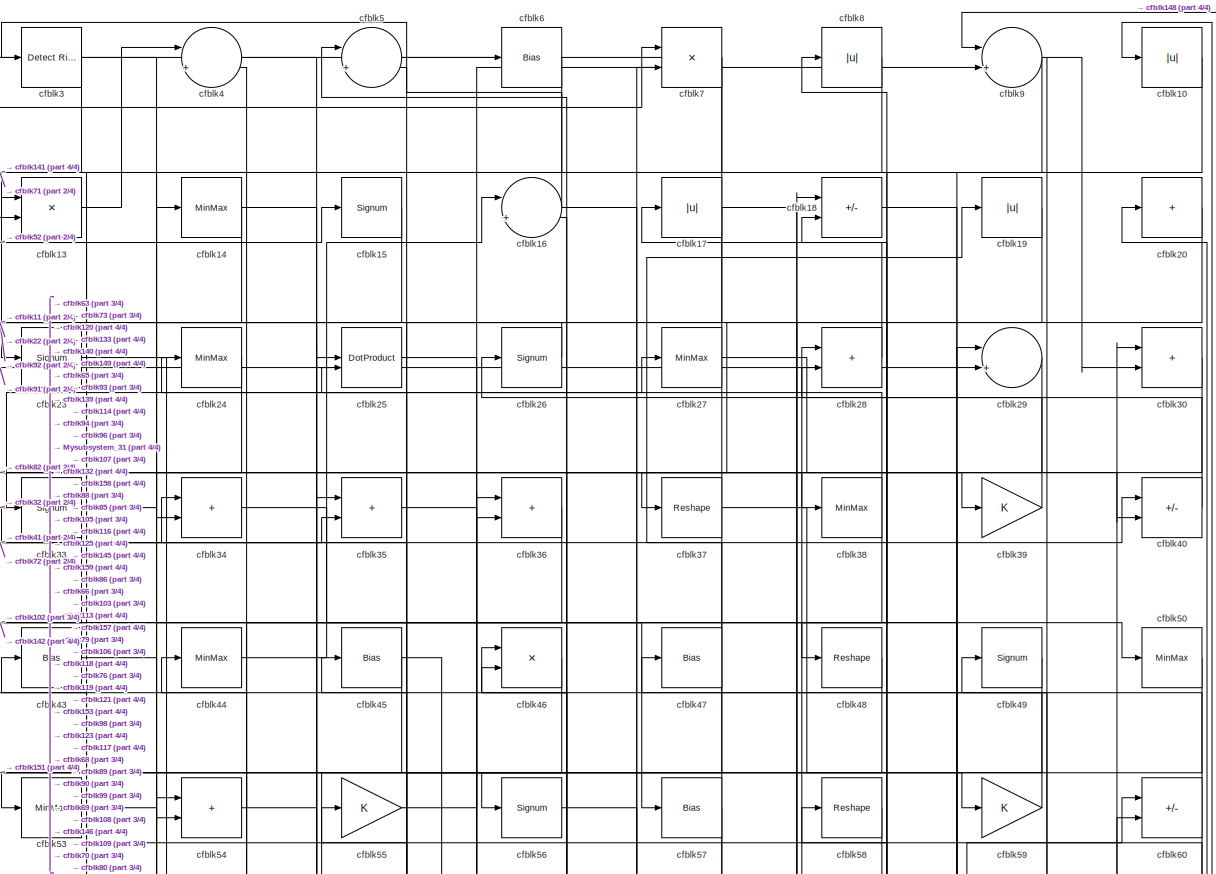
[diagram: root canvas - part 1/4, full width, top band]
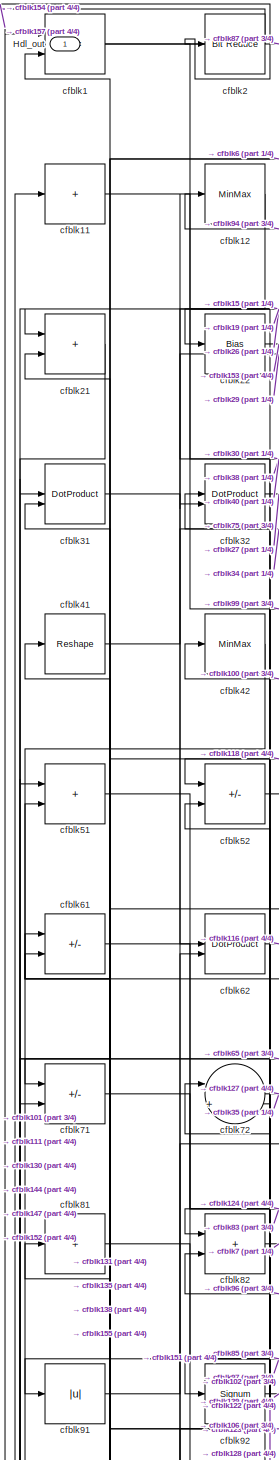
[diagram: root canvas - part 2/4, top left region]
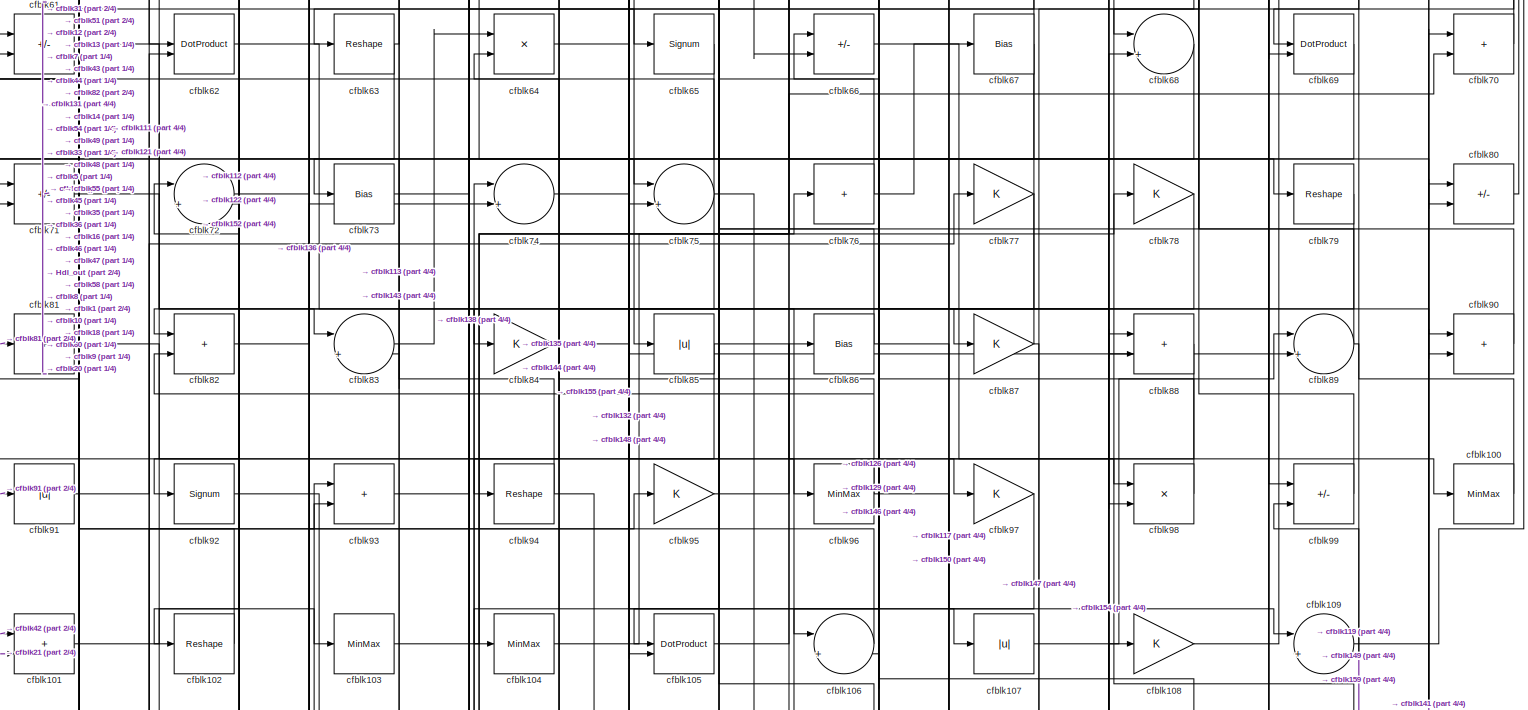
[diagram: root canvas - part 3/4, full width, middle band]
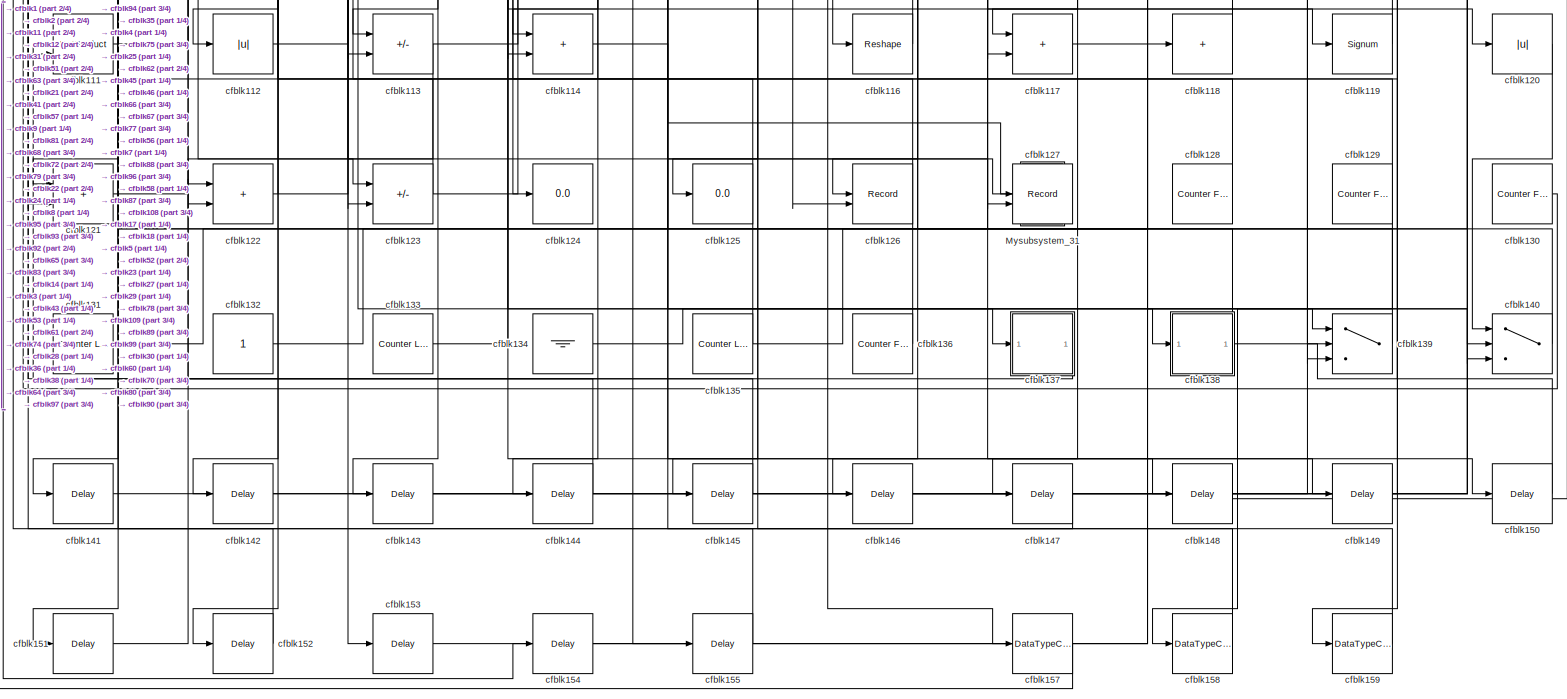
[diagram: root canvas - part 4/4, full width, bottom band]
MODEL slx_ad410b694e6f
KIND model
CONFIG AbsTol = auto
CONFIG EnableMultiTasking = off
CONFIG FixedStep = auto
CONFIG MaxStep = auto
CONFIG MinStep = auto
CONFIG RelTol = 1e-3
CONFIG SampleTimeConstraint = Unconstrained
CONFIG SolverName = VariableStepAuto
CONFIG StartTime = 0.0
CONFIG StopTime = 10.0
BLOCK [Outport] Hdl_out
  OutDataTypeStr = uint8
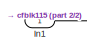
[diagram: Mysubsystem_31 - part 1/2, top left region]
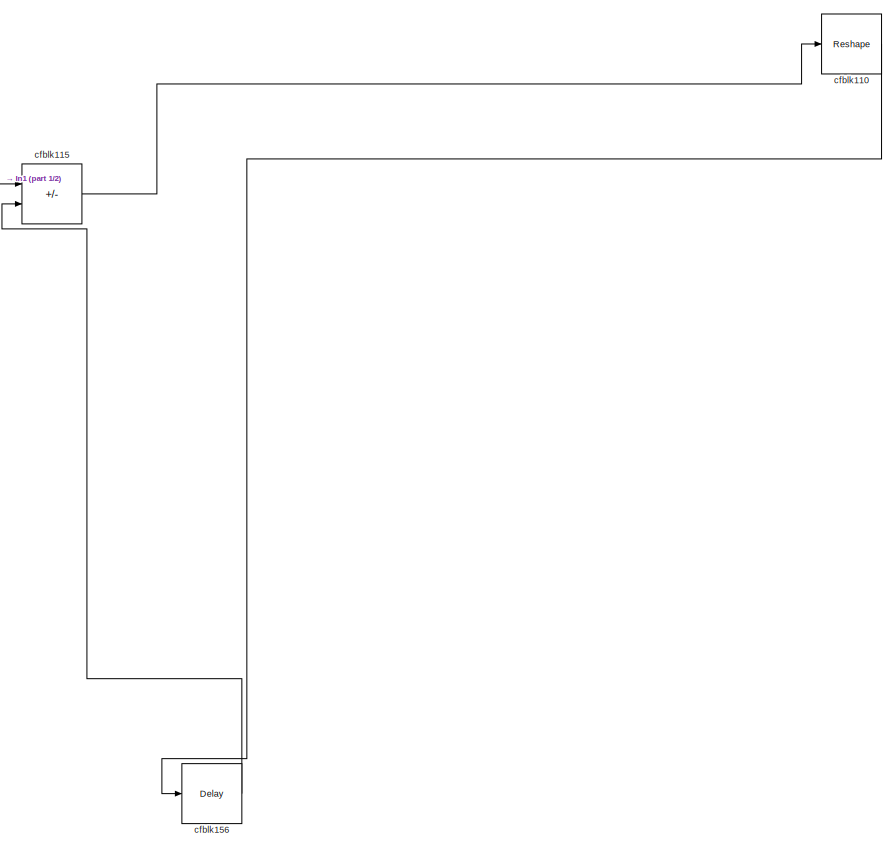
[diagram: Mysubsystem_31 - part 2/2, full width, bottom band]
BLOCK [SubSystem] Mysubsystem_31
  RTWFcnName = Mysubsystem_31
  RTWFcnNameOpts = User specified
  RTWFileNameOpts = Use function name
  RTWSystemCode = Reusable function
  TreatAsAtomicUnit = on
BLOCK [Inport] Mysubsystem_31/In1
BLOCK [Reshape] Mysubsystem_31/cfblk110
BLOCK [Sum] Mysubsystem_31/cfblk115
  IconShape = rectangular
  Inputs = +-
BLOCK [Delay] Mysubsystem_31/cfblk156
  InputPortMap = u0
  SampleTime = 1
BLOCK [RelationalOperator] cfblk1
  InputSameDT = off
  Operator = <=
  OutDataTypeStr = boolean
BLOCK [Abs] cfblk10
  OutDataTypeStr = uint8
  SaturateOnIntegerOverflow = off
BLOCK [MinMax] cfblk100
  OutDataTypeStr = uint8
BLOCK [Sum] cfblk101
  IconShape = rectangular
  OutDataTypeStr = uint8
BLOCK [Reshape] cfblk102
BLOCK [MinMax] cfblk103
  OutDataTypeStr = uint8
BLOCK [MinMax] cfblk104
  OutDataTypeStr = uint8
BLOCK [DotProduct] cfblk105
  OutDataTypeStr = uint8
BLOCK [Sum] cfblk106
  Inputs = |++
  OutDataTypeStr = uint8
BLOCK [Abs] cfblk107
  OutDataTypeStr = uint8
  SaturateOnIntegerOverflow = off
BLOCK [Gain] cfblk108
  OutDataTypeStr = uint8
BLOCK [Sum] cfblk109
  Inputs = |++
  OutDataTypeStr = uint8
BLOCK [Sum] cfblk11
  IconShape = rectangular
  Inputs = +
  OutDataTypeStr = uint8
BLOCK [DotProduct] cfblk111
  OutDataTypeStr = uint8
BLOCK [Abs] cfblk112
  OutDataTypeStr = uint8
  SaturateOnIntegerOverflow = off
BLOCK [Sum] cfblk113
  IconShape = rectangular
  Inputs = +-
  OutDataTypeStr = uint8
BLOCK [Sum] cfblk114
  IconShape = rectangular
  OutDataTypeStr = uint8
BLOCK [Reshape] cfblk116
BLOCK [Sum] cfblk117
  IconShape = rectangular
  OutDataTypeStr = uint8
BLOCK [Sum] cfblk118
  IconShape = rectangular
  Inputs = +
  OutDataTypeStr = uint8
BLOCK [Signum] cfblk119
BLOCK [MinMax] cfblk12
  OutDataTypeStr = uint8
BLOCK [Abs] cfblk120
  OutDataTypeStr = uint8
  SaturateOnIntegerOverflow = off
BLOCK [Sum] cfblk121
  IconShape = rectangular
  OutDataTypeStr = uint8
BLOCK [Sum] cfblk122
  IconShape = rectangular
  OutDataTypeStr = uint8
BLOCK [Sum] cfblk123
  IconShape = rectangular
  Inputs = +-
  OutDataTypeStr = uint8
BLOCK [Display] cfblk124
  Decimation = 1
BLOCK [Display] cfblk125
  Decimation = 1
BLOCK [Record] cfblk126
  CompatibilityTag = XY
  FileSettingsInternal = {"entries":[{"content":{"excelSettings":{"content":{},"type":"Streamout.ExcelSettings"}},"type":"Streamout.FileSettingStorage","uuid":""}],"packageUris":["http:\/\/schema.mathworks.com\/mf0\/streamout_blocks\/R2020a"],"version":"1.0"}
  Layout = [1 1]
  SignalsInternal = {"entries":[{"content":{"signals":[{"content":{"blockPath":[],"dimensions":[1],"domain":"","lineColor":"#a2142f","plots":[1],"port":1,"signalID":12275,"signalName":"cfblk67"},"type":"RecordBlkView.Signal","uuid":""},{"content":{"blockPath":[],"dimensions":[1],"domain":"","lineColor":"#139fff","plots":[1],"port":2,"signalID":12278,"signalName":"cfblk75"},"type":"RecordBlkView.Signal","uuid":""}]},"...<+142ch>
  VisualizationBindings = {"xyplotplugin":{"info":[{"series":[{"bindingParametersList":[{"parameter":"X-Axis","signalID":12275,"signalName":"cfblk67"},{"parameter":"Y-Axis","signalID":12278,"signalName":"cfblk75"}],"seriesID":9801}],"subplotID":1}]}}
  st = -1
BLOCK [Record] cfblk127
  CompatibilityTag = XY
  FileSettingsInternal = {"entries":[{"content":{"excelSettings":{"content":{},"type":"Streamout.ExcelSettings"}},"type":"Streamout.FileSettingStorage","uuid":""}],"packageUris":["http:\/\/schema.mathworks.com\/mf0\/streamout_blocks\/R2020a"],"version":"1.0"}
  Layout = [1 1]
  SignalsInternal = {"entries":[{"content":{"signals":[{"content":{"blockPath":[],"dimensions":[1],"domain":"","lineColor":"#a2142f","plots":[1],"port":1,"signalID":12267,"signalName":"cfblk114"},"type":"RecordBlkView.Signal","uuid":""},{"content":{"blockPath":[],"dimensions":[1],"domain":"","lineColor":"#139fff","plots":[1],"port":2,"signalID":12270,"signalName":"cfblk72"},"type":"RecordBlkView.Signal","uuid":""}]},...<+143ch>
  VisualizationBindings = {"xyplotplugin":{"info":[{"series":[{"bindingParametersList":[{"parameter":"X-Axis","signalID":12267,"signalName":"cfblk114"},{"parameter":"Y-Axis","signalID":12270,"signalName":"cfblk72"}],"seriesID":38847}],"subplotID":1}]}}
  st = -1
BLOCK [Reference] cfblk128  REF=hdlsllib/Sources/Counter
Free-Running
  SourceBlock = hdlsllib/Sources/Counter\nFree-Running
  SourceType = Counter Free-Running
BLOCK [Reference] cfblk129  REF=hdlsllib/Sources/Counter
Free-Running
  SourceBlock = hdlsllib/Sources/Counter\nFree-Running
  SourceType = Counter Free-Running
BLOCK [Product] cfblk13
  Inputs = */
  OutDataTypeStr = uint8
  RndMeth = Zero
  SaturateOnIntegerOverflow = on
BLOCK [Reference] cfblk130  REF=hdlsllib/Sources/Counter
Free-Running
  SourceBlock = hdlsllib/Sources/Counter\nFree-Running
  SourceType = Counter Free-Running
BLOCK [Reference] cfblk131  REF=hdlsllib/Sources/Counter
Limited
  SourceBlock = hdlsllib/Sources/Counter\nLimited
  SourceType = Counter Limited
BLOCK [Constant] cfblk132
  OutDataTypeStr = uint8
  SampleTime = -1
BLOCK [Reference] cfblk133  REF=hdlsllib/Sources/Counter
Limited
  SourceBlock = hdlsllib/Sources/Counter\nLimited
  SourceType = Counter Limited
BLOCK [Ground] cfblk134
BLOCK [Reference] cfblk135  REF=hdlsllib/Sources/Counter
Limited
  SourceBlock = hdlsllib/Sources/Counter\nLimited
  SourceType = Counter Limited
BLOCK [Reference] cfblk136  REF=hdlsllib/Sources/Counter
Free-Running
  SourceBlock = hdlsllib/Sources/Counter\nFree-Running
  SourceType = Counter Free-Running
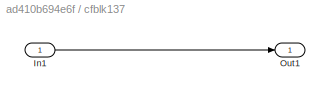
BLOCK [SubSystem] cfblk137
  LibrarySourceBlock = hdlsllib/Ports &\nSubsystems/Subsystem
BLOCK [Inport] cfblk137/In1
BLOCK [Outport] cfblk137/Out1
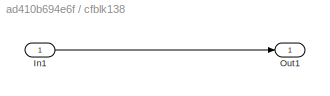
BLOCK [SubSystem] cfblk138
  LibrarySourceBlock = hdlsllib/Ports &\nSubsystems/Subsystem
BLOCK [Inport] cfblk138/In1
BLOCK [Outport] cfblk138/Out1
BLOCK [Switch] cfblk139
  InputSameDT = off
  OutDataTypeStr = uint8
  SaturateOnIntegerOverflow = off
BLOCK [MinMax] cfblk14
  OutDataTypeStr = uint8
BLOCK [Switch] cfblk140
  InputSameDT = off
  OutDataTypeStr = uint8
  SaturateOnIntegerOverflow = off
BLOCK [Delay] cfblk141
  InputPortMap = u0
  SampleTime = 1
BLOCK [Delay] cfblk142
  InputPortMap = u0
  SampleTime = 1
BLOCK [Delay] cfblk143
  InputPortMap = u0
  SampleTime = 1
BLOCK [Delay] cfblk144
  InputPortMap = u0
  SampleTime = 1
BLOCK [Delay] cfblk145
  InputPortMap = u0
  SampleTime = 1
BLOCK [Delay] cfblk146
  InputPortMap = u0
  SampleTime = 1
BLOCK [Delay] cfblk147
  InputPortMap = u0
  SampleTime = 1
BLOCK [Delay] cfblk148
  InputPortMap = u0
  SampleTime = 1
BLOCK [Delay] cfblk149
  InputPortMap = u0
  SampleTime = 1
BLOCK [Signum] cfblk15
BLOCK [Delay] cfblk150
  InputPortMap = u0
  SampleTime = 1
BLOCK [Delay] cfblk151
  InputPortMap = u0
  SampleTime = 1
BLOCK [Delay] cfblk152
  InputPortMap = u0
  SampleTime = 1
BLOCK [Delay] cfblk153
  InputPortMap = u0
  SampleTime = 1
BLOCK [Delay] cfblk154
  InputPortMap = u0
  SampleTime = 1
BLOCK [Delay] cfblk155
  InputPortMap = u0
  SampleTime = 1
BLOCK [DataTypeConversion] cfblk157
  OutDataTypeStr = uint8
  RndMeth = Floor
  SaturateOnIntegerOverflow = off
BLOCK [DataTypeConversion] cfblk158
  OutDataTypeStr = uint8
  RndMeth = Floor
  SaturateOnIntegerOverflow = off
BLOCK [DataTypeConversion] cfblk159
  OutDataTypeStr = uint8
  RndMeth = Floor
  SaturateOnIntegerOverflow = off
BLOCK [Sum] cfblk16
  Inputs = |++
  OutDataTypeStr = uint8
BLOCK [Abs] cfblk17
  OutDataTypeStr = uint8
  SaturateOnIntegerOverflow = off
BLOCK [Sum] cfblk18
  IconShape = rectangular
  Inputs = +-
  OutDataTypeStr = uint8
BLOCK [Abs] cfblk19
  OutDataTypeStr = uint8
  SaturateOnIntegerOverflow = off
BLOCK [Reference] cfblk2  REF=hdlsllib/Logic and Bit
Operations/Bit Reduce
  SourceBlock = hdlsllib/Logic and Bit\nOperations/Bit Reduce
  SourceType = Bit Reduce
BLOCK [Sum] cfblk20
  IconShape = rectangular
  Inputs = +
  OutDataTypeStr = uint8
BLOCK [Sum] cfblk21
  IconShape = rectangular
  OutDataTypeStr = uint8
BLOCK [Bias] cfblk22
  Bias = 0.0
  SaturateOnIntegerOverflow = off
BLOCK [Signum] cfblk23
BLOCK [MinMax] cfblk24
  OutDataTypeStr = uint8
BLOCK [DotProduct] cfblk25
  OutDataTypeStr = uint8
BLOCK [Signum] cfblk26
BLOCK [MinMax] cfblk27
  OutDataTypeStr = uint8
BLOCK [Sum] cfblk28
  IconShape = rectangular
  OutDataTypeStr = uint8
BLOCK [Sum] cfblk29
  Inputs = |++
  OutDataTypeStr = uint8
BLOCK [Reference] cfblk3  REF=hdlsllib/Logic and Bit
Operations/Detect Rise
Positive
  SourceBlock = hdlsllib/Logic and Bit\nOperations/Detect Rise\nPositive
  SourceType = Detect Rise Positive
BLOCK [Sum] cfblk30
  IconShape = rectangular
  OutDataTypeStr = uint8
BLOCK [DotProduct] cfblk31
  OutDataTypeStr = uint8
BLOCK [DotProduct] cfblk32
  OutDataTypeStr = uint8
BLOCK [Signum] cfblk33
BLOCK [Sum] cfblk34
  IconShape = rectangular
  OutDataTypeStr = uint8
BLOCK [Sum] cfblk35
  IconShape = rectangular
  OutDataTypeStr = uint8
BLOCK [Sum] cfblk36
  IconShape = rectangular
  OutDataTypeStr = uint8
BLOCK [Reshape] cfblk37
BLOCK [MinMax] cfblk38
  OutDataTypeStr = uint8
BLOCK [Gain] cfblk39
  OutDataTypeStr = uint8
BLOCK [Sum] cfblk4
  Inputs = |++
  OutDataTypeStr = uint8
BLOCK [Sum] cfblk40
  IconShape = rectangular
  Inputs = +-
  OutDataTypeStr = uint8
BLOCK [Reshape] cfblk41
BLOCK [MinMax] cfblk42
  OutDataTypeStr = uint8
BLOCK [Bias] cfblk43
  Bias = 0.0
  SaturateOnIntegerOverflow = off
BLOCK [MinMax] cfblk44
  OutDataTypeStr = uint8
BLOCK [Bias] cfblk45
  Bias = 0.0
  SaturateOnIntegerOverflow = off
BLOCK [Product] cfblk46
  Inputs = */
  OutDataTypeStr = uint8
  RndMeth = Zero
  SaturateOnIntegerOverflow = on
BLOCK [Bias] cfblk47
  Bias = 0.0
  SaturateOnIntegerOverflow = off
BLOCK [Reshape] cfblk48
BLOCK [Signum] cfblk49
BLOCK [Sum] cfblk5
  Inputs = |++
  OutDataTypeStr = uint8
BLOCK [MinMax] cfblk50
  OutDataTypeStr = uint8
BLOCK [Sum] cfblk51
  IconShape = rectangular
  OutDataTypeStr = uint8
BLOCK [Sum] cfblk52
  IconShape = rectangular
  Inputs = +-
  OutDataTypeStr = uint8
BLOCK [MinMax] cfblk53
  OutDataTypeStr = uint8
BLOCK [Sum] cfblk54
  IconShape = rectangular
  OutDataTypeStr = uint8
BLOCK [Gain] cfblk55
  OutDataTypeStr = uint8
BLOCK [Signum] cfblk56
BLOCK [Bias] cfblk57
  Bias = 0.0
  SaturateOnIntegerOverflow = off
BLOCK [Reshape] cfblk58
BLOCK [Gain] cfblk59
  OutDataTypeStr = uint8
BLOCK [Bias] cfblk6
  Bias = 0.0
  SaturateOnIntegerOverflow = off
BLOCK [Sum] cfblk60
  IconShape = rectangular
  Inputs = +-
  OutDataTypeStr = uint8
BLOCK [Sum] cfblk61
  IconShape = rectangular
  Inputs = +-
  OutDataTypeStr = uint8
BLOCK [DotProduct] cfblk62
  OutDataTypeStr = uint8
BLOCK [Reshape] cfblk63
BLOCK [Product] cfblk64
  Inputs = */
  OutDataTypeStr = uint8
  RndMeth = Zero
  SaturateOnIntegerOverflow = on
BLOCK [Signum] cfblk65
BLOCK [Sum] cfblk66
  IconShape = rectangular
  Inputs = +-
  OutDataTypeStr = uint8
BLOCK [Bias] cfblk67
  Bias = 0.0
  SaturateOnIntegerOverflow = off
BLOCK [Sum] cfblk68
  Inputs = |++
  OutDataTypeStr = uint8
BLOCK [DotProduct] cfblk69
  OutDataTypeStr = uint8
BLOCK [Product] cfblk7
  Inputs = */
  OutDataTypeStr = uint8
  RndMeth = Zero
  SaturateOnIntegerOverflow = on
BLOCK [Sum] cfblk70
  IconShape = rectangular
  OutDataTypeStr = uint8
BLOCK [Sum] cfblk71
  IconShape = rectangular
  Inputs = +-
  OutDataTypeStr = uint8
BLOCK [Sum] cfblk72
  Inputs = |++
  OutDataTypeStr = uint8
BLOCK [Bias] cfblk73
  Bias = 0.0
  SaturateOnIntegerOverflow = off
BLOCK [Sum] cfblk74
  Inputs = |++
  OutDataTypeStr = uint8
BLOCK [Sum] cfblk75
  Inputs = |++
  OutDataTypeStr = uint8
BLOCK [Sum] cfblk76
  IconShape = rectangular
  Inputs = +
  OutDataTypeStr = uint8
BLOCK [Gain] cfblk77
  OutDataTypeStr = uint8
BLOCK [Gain] cfblk78
  OutDataTypeStr = uint8
BLOCK [Reshape] cfblk79
BLOCK [Abs] cfblk8
  OutDataTypeStr = uint8
  SaturateOnIntegerOverflow = off
BLOCK [Sum] cfblk80
  IconShape = rectangular
  Inputs = +-
  OutDataTypeStr = uint8
BLOCK [Sum] cfblk81
  IconShape = rectangular
  Inputs = +
  OutDataTypeStr = uint8
BLOCK [Sum] cfblk82
  IconShape = rectangular
  OutDataTypeStr = uint8
BLOCK [Sum] cfblk83
  Inputs = |++
  OutDataTypeStr = uint8
BLOCK [Gain] cfblk84
  OutDataTypeStr = uint8
BLOCK [Abs] cfblk85
  OutDataTypeStr = uint8
  SaturateOnIntegerOverflow = off
BLOCK [Bias] cfblk86
  Bias = 0.0
  SaturateOnIntegerOverflow = off
BLOCK [Gain] cfblk87
  OutDataTypeStr = uint8
BLOCK [Sum] cfblk88
  IconShape = rectangular
  OutDataTypeStr = uint8
BLOCK [Sum] cfblk89
  Inputs = |++
  OutDataTypeStr = uint8
BLOCK [Sum] cfblk9
  Inputs = |++
  OutDataTypeStr = uint8
BLOCK [Sum] cfblk90
  IconShape = rectangular
  OutDataTypeStr = uint8
BLOCK [Abs] cfblk91
  OutDataTypeStr = uint8
  SaturateOnIntegerOverflow = off
BLOCK [Signum] cfblk92
BLOCK [Sum] cfblk93
  IconShape = rectangular
  OutDataTypeStr = uint8
BLOCK [Reshape] cfblk94
BLOCK [Gain] cfblk95
  OutDataTypeStr = uint8
BLOCK [MinMax] cfblk96
  OutDataTypeStr = uint8
BLOCK [Gain] cfblk97
  OutDataTypeStr = uint8
BLOCK [Product] cfblk98
  Inputs = */
  OutDataTypeStr = uint8
  RndMeth = Zero
  SaturateOnIntegerOverflow = on
BLOCK [Sum] cfblk99
  IconShape = rectangular
  Inputs = +-
  OutDataTypeStr = uint8
LINE Mysubsystem_31/In1:1 -> Mysubsystem_31/cfblk115:1
LINE Mysubsystem_31/cfblk110:1 -> Mysubsystem_31/cfblk156:1
LINE Mysubsystem_31/cfblk115:1 -> Mysubsystem_31/cfblk110:1
LINE Mysubsystem_31/cfblk156:1 -> Mysubsystem_31/cfblk115:2
LINE cfblk100:1 -> cfblk42:1
LINE cfblk101:1 -> cfblk103:1
LINE cfblk102:1 -> cfblk81:1
LINE cfblk103:1 -> cfblk36:1
LINE cfblk104:1 -> cfblk76:1
LINE cfblk105:1 -> cfblk86:1
LINE cfblk106:1 -> cfblk31:2
LINE cfblk107:1 -> cfblk89:1
LINE cfblk108:1 -> cfblk60:1
LINE cfblk109:1 -> cfblk10:1
NET cfblk10:1 -> cfblk13:2, cfblk68:1, cfblk69:2
LINE cfblk111:1 -> cfblk93:2
LINE cfblk112:1 -> cfblk74:2
NET cfblk113:1 -> cfblk122:2, cfblk36:2
NET cfblk114:1 -> cfblk127:1, cfblk137:1
LINE cfblk116:1 -> cfblk45:1
LINE cfblk117:1 -> cfblk118:1
NET cfblk118:1 -> cfblk52:1, cfblk5:1
LINE cfblk119:1 -> cfblk78:1
NET cfblk11:1 -> cfblk38:1, cfblk40:2, cfblk75:2
LINE cfblk120:1 -> cfblk140:1
LINE cfblk121:1 -> cfblk77:1
NET cfblk122:1 -> cfblk52:2, cfblk95:1
NET cfblk123:1 -> cfblk28:1, cfblk72:2
LINE cfblk128:1 -> cfblk72:1
NET cfblk129:1 -> cfblk158:1, cfblk66:1
NET cfblk12:1 -> cfblk111:2, cfblk21:1
LINE cfblk130:1 -> cfblk11:1
NET cfblk131:1 -> cfblk108:1, cfblk61:1
NET cfblk132:1 -> cfblk35:1, cfblk60:2, cfblk7:2, cfblk90:1
LINE cfblk133:1 -> cfblk14:1
LINE cfblk134:1 -> cfblk138:1
NET cfblk135:1 -> cfblk61:2, cfblk64:2, cfblk88:1
LINE cfblk136:1 -> cfblk93:1
LINE cfblk137/In1:1 -> cfblk137/Out1:1
LINE cfblk137:1 -> cfblk111:1
LINE cfblk138/In1:1 -> cfblk138/Out1:1
NET cfblk138:1 -> cfblk21:2, cfblk74:1
LINE cfblk139:1 -> cfblk41:1
LINE cfblk13:1 -> cfblk4:1
LINE cfblk140:1 -> cfblk46:1
LINE cfblk141:1 -> cfblk80:1
LINE cfblk142:1 -> cfblk29:1
LINE cfblk143:1 -> cfblk70:1
LINE cfblk144:1 -> cfblk51:1
LINE cfblk145:1 -> cfblk122:1
LINE cfblk146:1 -> cfblk30:1
LINE cfblk147:1 -> cfblk1:1
LINE cfblk148:1 -> cfblk9:1
LINE cfblk149:1 -> cfblk99:2
NET cfblk14:1 -> cfblk54:2, cfblk88:2
LINE cfblk150:1 -> cfblk109:2
LINE cfblk151:1 -> cfblk62:2
LINE cfblk152:1 -> cfblk31:1
LINE cfblk153:1 -> cfblk18:1
LINE cfblk154:1 -> cfblk68:2
LINE cfblk155:1 -> cfblk1:2
LINE cfblk157:1 -> cfblk2:1
LINE cfblk158:1 -> cfblk25:1
LINE cfblk159:1 -> cfblk25:2
LINE cfblk15:1 -> cfblk92:1
NET cfblk16:1 -> cfblk3:1, cfblk90:2
NET cfblk17:1 -> cfblk125:1, cfblk140:3
LINE cfblk18:1 -> cfblk80:2
NET cfblk19:1 -> cfblk32:2, cfblk48:1
LINE cfblk1:1 -> cfblk99:1
NET cfblk20:1 -> cfblk37:1, cfblk98:2
LINE cfblk21:1 -> cfblk101:2
LINE cfblk22:1 -> cfblk153:1
LINE cfblk23:1 -> cfblk139:2
LINE cfblk24:1 -> cfblk123:2
LINE cfblk25:1 -> cfblk157:1
LINE cfblk26:1 -> cfblk22:1
LINE cfblk27:1 -> cfblk139:3
LINE cfblk28:1 -> cfblk17:1
LINE cfblk29:1 -> cfblk56:1
LINE cfblk2:1 -> cfblk154:1
LINE cfblk30:1 -> cfblk82:1
LINE cfblk31:1 -> cfblk62:1
LINE cfblk32:1 -> cfblk27:1
NET cfblk33:1 -> cfblk102:1, cfblk39:1
LINE cfblk34:1 -> cfblk57:1
LINE cfblk35:1 -> cfblk79:1
LINE cfblk36:1 -> cfblk142:1
LINE cfblk37:1 -> cfblk59:1
NET cfblk38:1 -> cfblk114:1, cfblk4:2
LINE cfblk39:1 -> cfblk26:1
NET cfblk3:1 -> cfblk140:2, cfblk23:1, cfblk50:1
LINE cfblk40:1 -> cfblk28:2
NET cfblk41:1 -> cfblk34:1, cfblk40:1
LINE cfblk42:1 -> cfblk101:1
NET cfblk43:1 -> cfblk120:1, cfblk65:1
LINE cfblk44:1 -> cfblk16:1
NET cfblk45:1 -> cfblk114:2, cfblk151:1, cfblk66:2, cfblk94:1
LINE cfblk46:1 -> cfblk145:1
NET cfblk47:1 -> cfblk106:1, cfblk19:1
LINE cfblk48:1 -> cfblk105:1
LINE cfblk49:1 -> cfblk85:1
LINE cfblk4:1 -> Mysubsystem_31:1
LINE cfblk50:1 -> cfblk53:1
LINE cfblk51:1 -> cfblk83:1
LINE cfblk52:1 -> cfblk15:1
LINE cfblk53:1 -> cfblk149:1
NET cfblk54:1 -> cfblk107:1, cfblk24:1
LINE cfblk55:1 -> cfblk9:2
LINE cfblk56:1 -> cfblk119:1
LINE cfblk57:1 -> cfblk121:1
LINE cfblk58:1 -> cfblk117:1
LINE cfblk59:1 -> cfblk49:1
LINE cfblk5:1 -> cfblk6:1
NET cfblk60:1 -> cfblk47:1, cfblk63:1
LINE cfblk61:1 -> cfblk124:1
LINE cfblk62:1 -> cfblk116:1
NET cfblk63:1 -> cfblk121:2, cfblk13:1
LINE cfblk64:1 -> cfblk148:1
NET cfblk65:1 -> cfblk143:1, cfblk71:2
LINE cfblk66:1 -> cfblk100:1
LINE cfblk67:1 -> cfblk126:1
NET cfblk68:1 -> cfblk106:2, cfblk112:1
LINE cfblk69:1 -> cfblk83:2
NET cfblk6:1 -> cfblk34:2, cfblk71:1
LINE cfblk70:1 -> cfblk43:1
LINE cfblk71:1 -> cfblk97:1
NET cfblk72:1 -> cfblk127:2, cfblk32:1, cfblk35:2
LINE cfblk73:1 -> cfblk75:1
LINE cfblk74:1 -> cfblk96:1
NET cfblk75:1 -> cfblk104:1, cfblk126:2, cfblk51:2
NET cfblk76:1 -> cfblk16:2, cfblk5:2, cfblk67:1
NET cfblk77:1 -> cfblk146:1, cfblk87:1
NET cfblk78:1 -> cfblk105:2, cfblk84:1
LINE cfblk79:1 -> cfblk152:1
LINE cfblk7:1 -> cfblk73:1
LINE cfblk80:1 -> cfblk20:1
LINE cfblk81:1 -> cfblk123:1
LINE cfblk82:1 -> cfblk7:1
NET cfblk83:1 -> cfblk113:1, cfblk64:1
LINE cfblk84:1 -> cfblk89:2
NET cfblk85:1 -> cfblk91:1, cfblk98:1
NET cfblk86:1 -> cfblk109:1, cfblk55:1
NET cfblk87:1 -> Hdl_out:1, cfblk147:1
LINE cfblk88:1 -> cfblk117:2
NET cfblk89:1 -> cfblk159:1, cfblk33:1, cfblk58:1
LINE cfblk8:1 -> cfblk113:2
LINE cfblk90:1 -> cfblk8:1
LINE cfblk91:1 -> cfblk29:2
LINE cfblk92:1 -> cfblk139:1
LINE cfblk93:1 -> cfblk54:1
NET cfblk94:1 -> cfblk12:1, cfblk155:1
LINE cfblk95:1 -> cfblk70:2
NET cfblk96:1 -> cfblk150:1, cfblk44:1, cfblk82:2
LINE cfblk97:1 -> cfblk144:1
LINE cfblk98:1 -> cfblk46:2
LINE cfblk99:1 -> cfblk18:2
NET cfblk9:1 -> cfblk141:1, cfblk30:2, cfblk69:1
note: NET lines group one-source signal fan-out (src -> all destinations, sorted); 1:1 wires keep LINE
